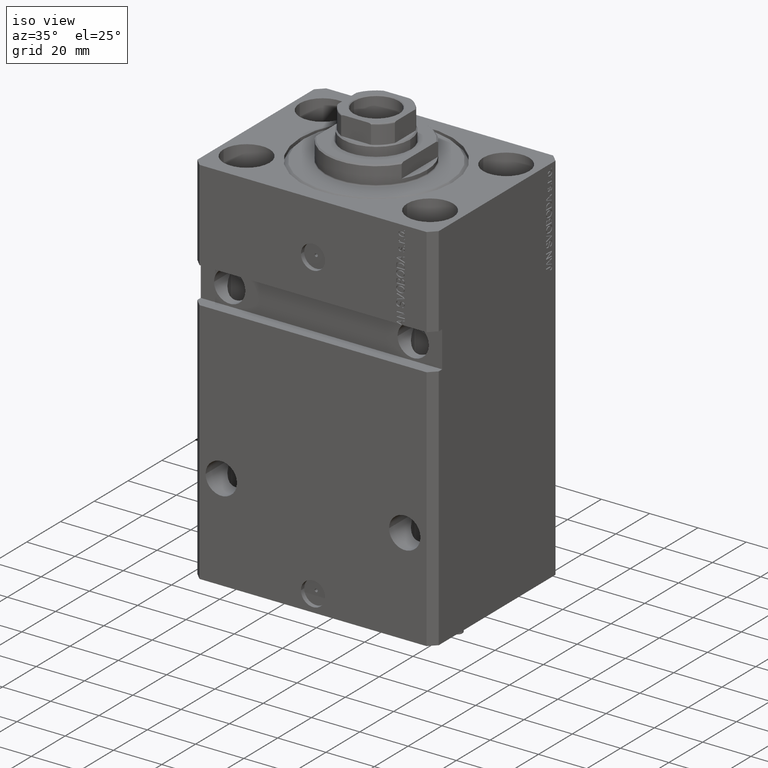
[diagram: clean part render]
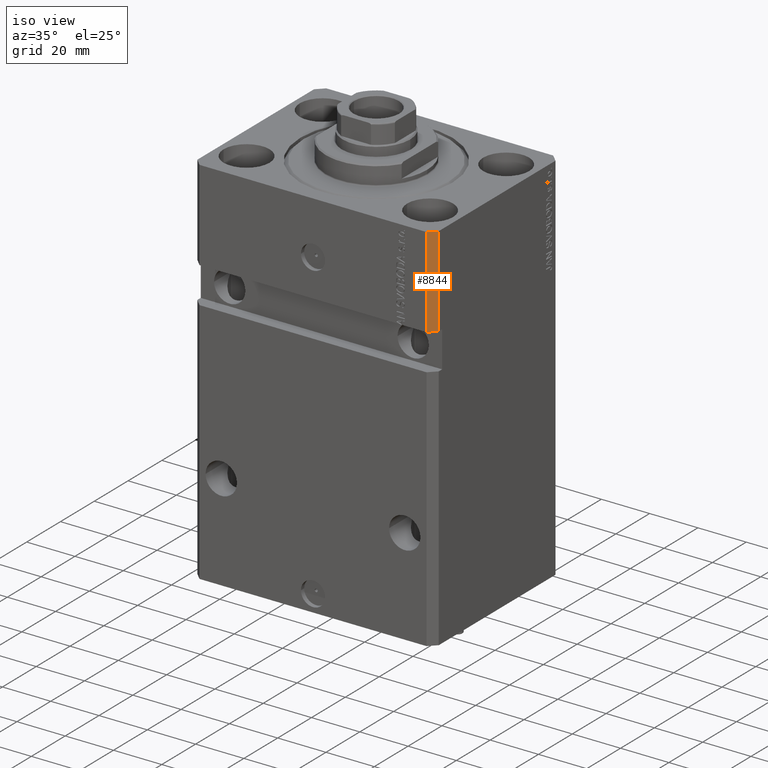
[diagram: same view with one face highlighted and labeled with its STEP entity id]
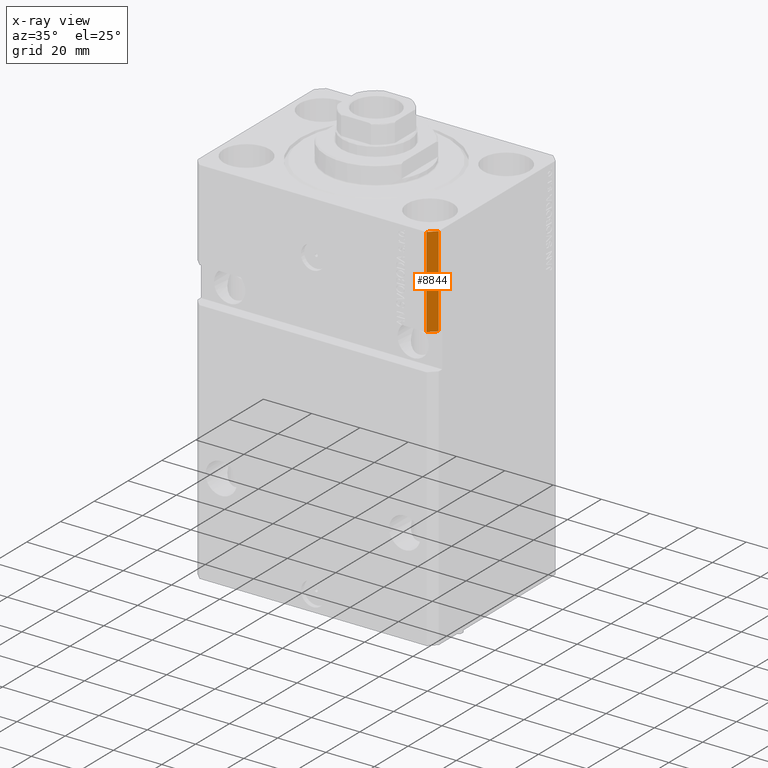
[diagram: x-ray of the same camera — body ghosted, the highlighted face saturated]
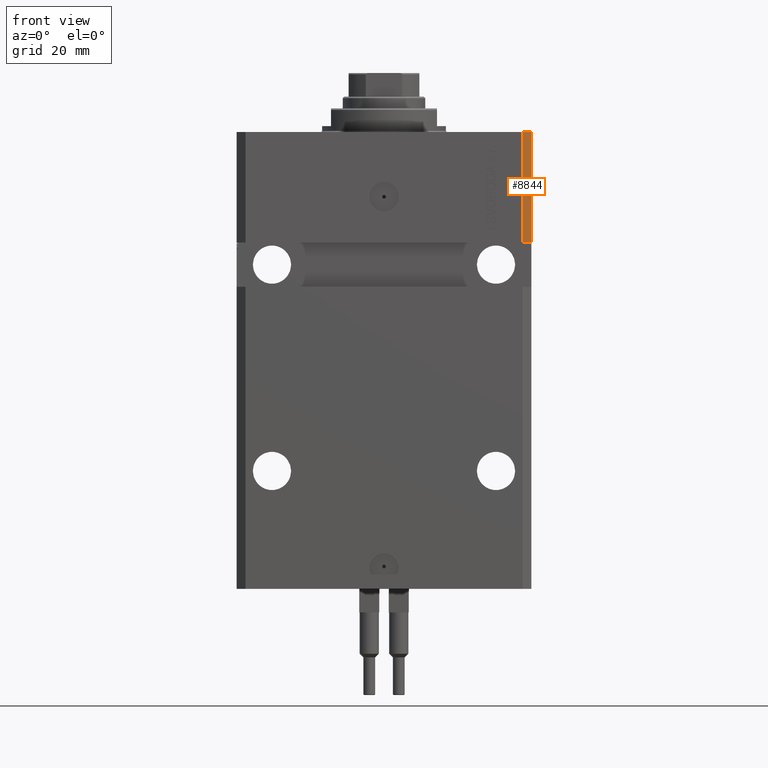
[diagram: same view with one face highlighted and labeled with its STEP entity id]
A machine part, iso view. The second image highlights one B-rep face of the part: STEP entity #8844.
The next image is the same camera in x-ray: the body ghosted, the highlighted face saturated — about 0% of this face is hidden behind the body in this view.
A second angle (front view) of the same face is appended — the face is thin or edge-on in the first view.
In plain terms, the highlighted planar face has unit normal (0.7071, -0.7071, 0).
Its self-contained STEP definition (entity closure, byte-faithful):
#166 = VERTEX_POINT ( 'NONE', #11821 ) ;
#1023 = CARTESIAN_POINT ( 'NONE',  ( 47.00000000000000000, -37.49999999999999289, -37.49999999999999289 ) ) ;
#4690 = VERTEX_POINT ( 'NONE', #18061 ) ;
#8262 = DIRECTION ( 'NONE',  ( 0.7071067811865467956, -0.7071067811865483499, 0.000000000000000000 ) ) ;
#8388 = VECTOR ( 'NONE', #21939, 1000.000000000000000 ) ;
#8491 = VECTOR ( 'NONE', #15989, 1000.000000000000000 ) ;
#8844 = ADVANCED_FACE ( 'NONE', ( #31764 ), #46171, .T. ) ;
#9015 = DIRECTION ( 'NONE',  ( -0.7071067811865483499, -0.7071067811865467956, -9.813077866773603112E-17 ) ) ;
#11821 = CARTESIAN_POINT ( 'NONE',  ( 47.00000000000000000, -37.50000000000000711, 0.000000000000000000 ) ) ;
#12975 = EDGE_CURVE ( 'NONE', #166, #4690, #47951, .T. ) ;
#15211 = EDGE_LOOP ( 'NONE', ( #34946, #42993, #19809, #23515 ) ) ;
#15989 = DIRECTION ( 'NONE',  ( 0.000000000000000000, 0.000000000000000000, 1.000000000000000000 ) ) ;
#16168 = EDGE_CURVE ( 'NONE', #27996, #166, #23916, .T. ) ;
#18061 = CARTESIAN_POINT ( 'NONE',  ( 50.00000000000000000, -34.50000000000000711, 0.000000000000000000 ) ) ;
#19411 = CARTESIAN_POINT ( 'NONE',  ( 47.00000000000000000, -37.50000000000000711, -155.0000000000000000 ) ) ;
#19624 = VECTOR ( 'NONE', #40809, 1000.000000000000000 ) ;
#19809 = ORIENTED_EDGE ( 'NONE', *, *, #12975, .F. ) ;
#20194 = CARTESIAN_POINT ( 'NONE',  ( 47.00000000000000000, -37.50000000000000711, -155.0000000000000000 ) ) ;
#20913 = AXIS2_PLACEMENT_3D ( 'NONE', #19411, #8262, #23865 ) ;
#21489 = CARTESIAN_POINT ( 'NONE',  ( 50.00000000000000000, -34.50000000000000711, -155.0000000000000000 ) ) ;
#21575 = CARTESIAN_POINT ( 'NONE',  ( 49.99999999999999289, -34.50000000000001421, -37.49999999999999289 ) ) ;
#21939 = DIRECTION ( 'NONE',  ( 0.7071067811865483499, 0.7071067811865466846, 0.000000000000000000 ) ) ;
#23515 = ORIENTED_EDGE ( 'NONE', *, *, #16168, .F. ) ;
#23865 = DIRECTION ( 'NONE',  ( 0.7071067811865483499, 0.7071067811865467956, 0.000000000000000000 ) ) ;
#23916 = LINE ( 'NONE', #20194, #8491 ) ;
#27826 = CARTESIAN_POINT ( 'NONE',  ( 46.99999999999999289, -37.50000000000001421, -37.49999999999999289 ) ) ;
#27996 = VERTEX_POINT ( 'NONE', #1023 ) ;
#28549 = EDGE_CURVE ( 'NONE', #29049, #27996, #35763, .T. ) ;
#28903 = LINE ( 'NONE', #21489, #19624 ) ;
#29049 = VERTEX_POINT ( 'NONE', #21575 ) ;
#31764 = FACE_OUTER_BOUND ( 'NONE', #15211, .T. ) ;
#34487 = VECTOR ( 'NONE', #9015, 1000.000000000000000 ) ;
#34946 = ORIENTED_EDGE ( 'NONE', *, *, #28549, .F. ) ;
#35763 = LINE ( 'NONE', #27826, #34487 ) ;
#36503 = EDGE_CURVE ( 'NONE', #29049, #4690, #28903, .T. ) ;
#40809 = DIRECTION ( 'NONE',  ( 0.000000000000000000, 0.000000000000000000, 1.000000000000000000 ) ) ;
#42993 = ORIENTED_EDGE ( 'NONE', *, *, #36503, .T. ) ;
#43504 = CARTESIAN_POINT ( 'NONE',  ( 47.00000000000000000, -37.50000000000000711, 0.000000000000000000 ) ) ;
#46171 = PLANE ( 'NONE',  #20913 ) ;
#47951 = LINE ( 'NONE', #43504, #8388 ) ;